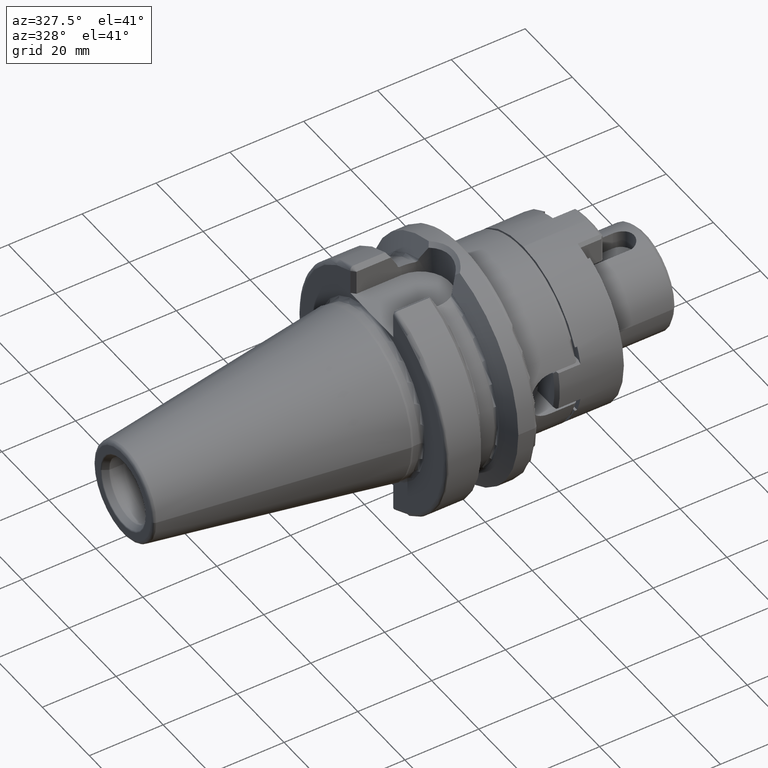
[diagram: clean part render]
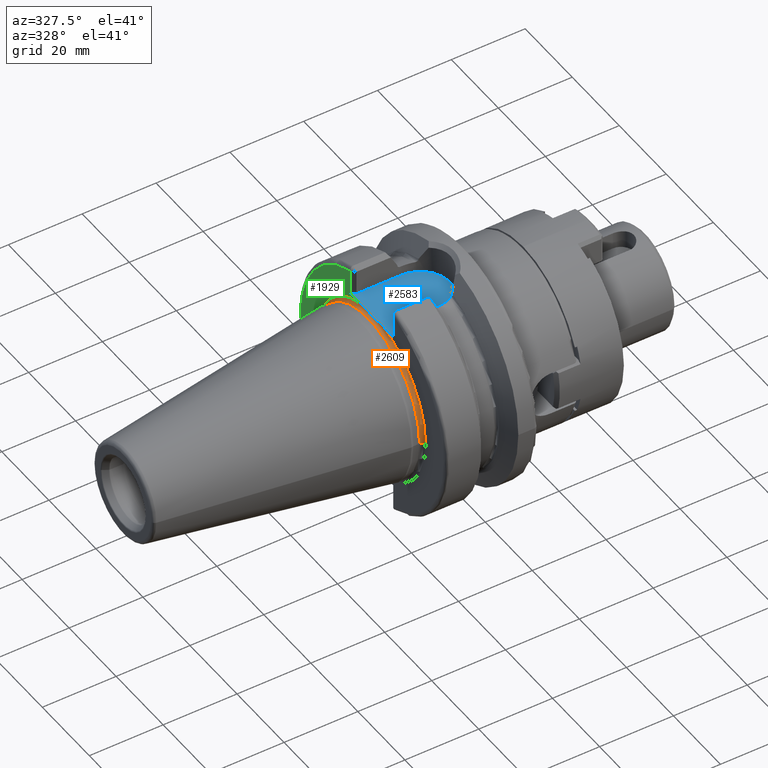
[diagram: same view with three faces highlighted in distinct colors, each labeled with its STEP entity id]
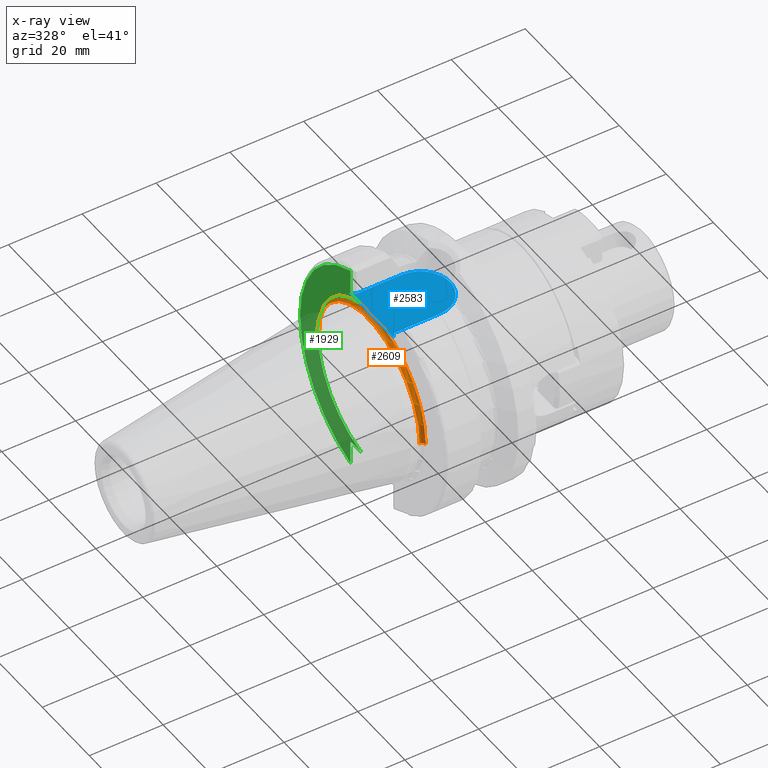
[diagram: x-ray of the same camera — body ghosted, the three highlighted faces saturated]
A machine part, auxiliary view with three faces highlighted in distinct colors.
The next image is the same camera in x-ray (body ghosted, the three faces saturated) — at least one of them is partly hidden behind the body in this view.
Their STEP definitions:

[orange] entity #2609 — the highlighted toroidal blend (fillet) surface has major radius 22.875 mm and minor (blend) radius 1 mm.
#78=CARTESIAN_POINT('',(1.E0,0.E0,0.E0));
#79=DIRECTION('',(1.E0,0.E0,0.E0));
#80=DIRECTION('',(0.E0,1.E0,0.E0));
#81=AXIS2_PLACEMENT_3D('',#78,#79,#80);
#101=CARTESIAN_POINT('',(1.E0,2.2875E1,0.E0));
#102=DIRECTION('',(0.E0,0.E0,-1.E0));
#103=DIRECTION('',(1.E0,0.E0,0.E0));
#104=AXIS2_PLACEMENT_3D('',#101,#102,#103);
#106=CARTESIAN_POINT('',(1.E0,-2.2875E1,0.E0));
#107=DIRECTION('',(0.E0,0.E0,1.E0));
#108=DIRECTION('',(1.E0,0.E0,0.E0));
#109=AXIS2_PLACEMENT_3D('',#106,#107,#108);
#709=CARTESIAN_POINT('',(2.E0,0.E0,0.E0));
#710=DIRECTION('',(1.E0,0.E0,0.E0));
#711=DIRECTION('',(0.E0,1.E0,0.E0));
#712=AXIS2_PLACEMENT_3D('',#709,#710,#711);
#714=CARTESIAN_POINT('',(2.E0,-4.388977671395E0,2.245E1));
#715=CARTESIAN_POINT('',(2.E0,-3.970864393558E0,2.245E1));
#716=CARTESIAN_POINT('',(1.981114905487E0,-3.134790252725E0,2.245E1));
#717=CARTESIAN_POINT('',(1.935909306649E0,-1.881114481277E0,2.245E1));
#718=CARTESIAN_POINT('',(1.903922826077E0,-6.271978192649E-1,2.245E1));
#719=CARTESIAN_POINT('',(1.903921553166E0,6.271174205746E-1,2.245E1));
#720=CARTESIAN_POINT('',(1.935907277499E0,1.881058976319E0,2.245E1));
#721=CARTESIAN_POINT('',(1.981114329557E0,3.134769380755E0,2.245E1));
#722=CARTESIAN_POINT('',(2.E0,3.970858027314E0,2.245E1));
#723=CARTESIAN_POINT('',(2.E0,4.388977671395E0,2.245E1));
#725=CARTESIAN_POINT('',(2.E0,0.E0,0.E0));
#726=DIRECTION('',(1.E0,0.E0,0.E0));
#727=DIRECTION('',(0.E0,-1.918678763451E-1,9.814207650273E-1));
#728=AXIS2_PLACEMENT_3D('',#725,#726,#727);
#1526=CARTESIAN_POINT('',(2.E0,2.2875E1,0.E0));
#1527=CARTESIAN_POINT('',(1.E0,2.1875E1,0.E0));
#1528=VERTEX_POINT('',#1526);
#1529=VERTEX_POINT('',#1527);
#1532=CARTESIAN_POINT('',(2.E0,-2.2875E1,0.E0));
#1533=CARTESIAN_POINT('',(1.E0,-2.1875E1,0.E0));
#1534=VERTEX_POINT('',#1532);
#1535=VERTEX_POINT('',#1533);
#1596=CARTESIAN_POINT('',(2.E0,4.388977671395E0,2.245E1));
#1597=VERTEX_POINT('',#1596);
#1598=CARTESIAN_POINT('',(2.E0,-4.388977671395E0,2.245E1));
#1599=VERTEX_POINT('',#1598);
#2596=CARTESIAN_POINT('',(1.E0,0.E0,0.E0));
#2597=DIRECTION('',(1.E0,0.E0,0.E0));
#2598=DIRECTION('',(0.E0,-1.E0,0.E0));
#2599=AXIS2_PLACEMENT_3D('',#2596,#2597,#2598);
#2600=TOROIDAL_SURFACE('',#2599,2.2875E1,1.E0);
#2601=ORIENTED_EDGE('',*,*,#1922,.T.);
#2602=ORIENTED_EDGE('',*,*,#2574,.F.);
#2603=ORIENTED_EDGE('',*,*,#1940,.T.);
#2604=ORIENTED_EDGE('',*,*,#1900,.T.);
#2605=ORIENTED_EDGE('',*,*,#1869,.F.);
#2606=ORIENTED_EDGE('',*,*,#1897,.F.);
#2607=EDGE_LOOP('',(#2601,#2602,#2603,#2604,#2605,#2606));
#2608=FACE_OUTER_BOUND('',#2607,.F.);
#2609=ADVANCED_FACE('',(#2608),#2600,.F.);
#82=CIRCLE('',#81,2.1875E1);
#105=CIRCLE('',#104,1.E0);
#110=CIRCLE('',#109,1.E0);
#713=CIRCLE('',#712,2.2875E1);
#724=B_SPLINE_CURVE_WITH_KNOTS('',3,(#714,#715,#716,#717,#718,#719,#720,#721,
#722,#723),.UNSPECIFIED.,.F.,.F.,(4,1,1,1,1,1,1,4),(0.E0,1.428571428571E-1,
2.857142857143E-1,4.285714285714E-1,5.714285714286E-1,7.142857142857E-1,
8.571428571429E-1,1.E0),.UNSPECIFIED.);
#729=CIRCLE('',#728,2.2875E1);
#1869=EDGE_CURVE('',#1529,#1535,#82,.T.);
#1897=EDGE_CURVE('',#1528,#1529,#105,.T.);
#1900=EDGE_CURVE('',#1534,#1535,#110,.T.);
#1922=EDGE_CURVE('',#1528,#1597,#713,.T.);
#1940=EDGE_CURVE('',#1599,#1534,#729,.T.);
#2574=EDGE_CURVE('',#1599,#1597,#724,.T.);

[blue] entity #2583 — the highlighted planar face has unit normal (0, 0, 1).
#680=DIRECTION('',(1.E0,0.E0,0.E0));
#681=VECTOR('',#680,1.2155E1);
#682=CARTESIAN_POINT('',(3.E0,-8.095E0,2.245E1));
#683=LINE('',#682,#681);
#684=DIRECTION('',(0.E0,1.E0,0.E0));
#685=VECTOR('',#684,4.706022328605E0);
#686=CARTESIAN_POINT('',(2.E0,-9.095E0,2.245E1));
#687=LINE('',#686,#685);
#688=DIRECTION('',(0.E0,1.E0,0.E0));
#689=VECTOR('',#688,4.706022328605E0);
#690=CARTESIAN_POINT('',(2.E0,4.388977671395E0,2.245E1));
#691=LINE('',#690,#689);
#692=DIRECTION('',(-1.E0,0.E0,0.E0));
#693=VECTOR('',#692,1.2155E1);
#694=CARTESIAN_POINT('',(1.5155E1,8.095E0,2.245E1));
#695=LINE('',#694,#693);
#696=CARTESIAN_POINT('',(1.5155E1,0.E0,2.245E1));
#697=DIRECTION('',(0.E0,0.E0,1.E0));
#698=DIRECTION('',(0.E0,-1.E0,0.E0));
#699=AXIS2_PLACEMENT_3D('',#696,#697,#698);
#705=DIRECTION('',(7.071067811865E-1,7.071067811865E-1,0.E0));
#706=VECTOR('',#705,1.414213562373E0);
#707=CARTESIAN_POINT('',(2.E0,-9.095E0,2.245E1));
#708=LINE('',#707,#706);
#714=CARTESIAN_POINT('',(2.E0,-4.388977671395E0,2.245E1));
#715=CARTESIAN_POINT('',(2.E0,-3.970864393558E0,2.245E1));
#716=CARTESIAN_POINT('',(1.981114905487E0,-3.134790252725E0,2.245E1));
#717=CARTESIAN_POINT('',(1.935909306649E0,-1.881114481277E0,2.245E1));
#718=CARTESIAN_POINT('',(1.903922826077E0,-6.271978192649E-1,2.245E1));
#719=CARTESIAN_POINT('',(1.903921553166E0,6.271174205746E-1,2.245E1));
#720=CARTESIAN_POINT('',(1.935907277499E0,1.881058976319E0,2.245E1));
#721=CARTESIAN_POINT('',(1.981114329557E0,3.134769380755E0,2.245E1));
#722=CARTESIAN_POINT('',(2.E0,3.970858027314E0,2.245E1));
#723=CARTESIAN_POINT('',(2.E0,4.388977671395E0,2.245E1));
#730=DIRECTION('',(-7.071067811865E-1,7.071067811865E-1,0.E0));
#731=VECTOR('',#730,1.414213562373E0);
#732=CARTESIAN_POINT('',(3.E0,8.095E0,2.245E1));
#733=LINE('',#732,#731);
#1592=CARTESIAN_POINT('',(1.5155E1,-8.095E0,2.245E1));
#1593=CARTESIAN_POINT('',(1.5155E1,8.095E0,2.245E1));
#1594=VERTEX_POINT('',#1592);
#1595=VERTEX_POINT('',#1593);
#1596=CARTESIAN_POINT('',(2.E0,4.388977671395E0,2.245E1));
#1597=VERTEX_POINT('',#1596);
#1598=CARTESIAN_POINT('',(2.E0,-4.388977671395E0,2.245E1));
#1599=VERTEX_POINT('',#1598);
#1633=CARTESIAN_POINT('',(3.E0,-8.095E0,2.245E1));
#1635=VERTEX_POINT('',#1633);
#1637=CARTESIAN_POINT('',(2.E0,-9.095E0,2.245E1));
#1639=VERTEX_POINT('',#1637);
#1646=CARTESIAN_POINT('',(2.E0,9.095E0,2.245E1));
#1647=VERTEX_POINT('',#1646);
#1648=CARTESIAN_POINT('',(3.E0,8.095E0,2.245E1));
#1650=VERTEX_POINT('',#1648);
#2565=CARTESIAN_POINT('',(0.E0,0.E0,2.245E1));
#2566=DIRECTION('',(0.E0,0.E0,1.E0));
#2567=DIRECTION('',(1.E0,0.E0,0.E0));
#2568=AXIS2_PLACEMENT_3D('',#2565,#2566,#2567);
#2569=PLANE('',#2568);
#2570=ORIENTED_EDGE('',*,*,#2331,.F.);
#2572=ORIENTED_EDGE('',*,*,#2571,.F.);
#2573=ORIENTED_EDGE('',*,*,#1942,.T.);
#2575=ORIENTED_EDGE('',*,*,#2574,.T.);
#2576=ORIENTED_EDGE('',*,*,#1920,.T.);
#2578=ORIENTED_EDGE('',*,*,#2577,.F.);
#2579=ORIENTED_EDGE('',*,*,#2556,.F.);
#2580=ORIENTED_EDGE('',*,*,#2302,.F.);
#2581=EDGE_LOOP('',(#2570,#2572,#2573,#2575,#2576,#2578,#2579,#2580));
#2582=FACE_OUTER_BOUND('',#2581,.F.);
#2583=ADVANCED_FACE('',(#2582),#2569,.T.);
#700=CIRCLE('',#699,8.095E0);
#724=B_SPLINE_CURVE_WITH_KNOTS('',3,(#714,#715,#716,#717,#718,#719,#720,#721,
#722,#723),.UNSPECIFIED.,.F.,.F.,(4,1,1,1,1,1,1,4),(0.E0,1.428571428571E-1,
2.857142857143E-1,4.285714285714E-1,5.714285714286E-1,7.142857142857E-1,
8.571428571429E-1,1.E0),.UNSPECIFIED.);
#1920=EDGE_CURVE('',#1597,#1647,#691,.T.);
#1942=EDGE_CURVE('',#1639,#1599,#687,.T.);
#2302=EDGE_CURVE('',#1594,#1595,#700,.T.);
#2331=EDGE_CURVE('',#1635,#1594,#683,.T.);
#2556=EDGE_CURVE('',#1595,#1650,#695,.T.);
#2571=EDGE_CURVE('',#1639,#1635,#708,.T.);
#2574=EDGE_CURVE('',#1599,#1597,#724,.T.);
#2577=EDGE_CURVE('',#1650,#1647,#733,.T.);

[green] entity #1929 — the highlighted planar face has unit normal (1, 0, 0).
#96=CARTESIAN_POINT('',(2.E0,0.E0,0.E0));
#97=DIRECTION('',(-1.E0,0.E0,0.E0));
#98=DIRECTION('',(0.E0,1.E0,0.E0));
#99=AXIS2_PLACEMENT_3D('',#96,#97,#98);
#127=DIRECTION('',(2.137863157138E-6,2.138092596513E-6,9.999999999954E-1));
#128=VECTOR('',#127,6.649288203884E0);
#129=CARTESIAN_POINT('',(1.999985784732E0,9.094985783206E0,-2.909928820385E1));
#130=LINE('',#129,#128);
#131=DIRECTION('',(-4.462834027332E-6,-4.463945839096E-6,9.999999999801E-1));
#132=VECTOR('',#131,6.649296399125E0);
#133=CARTESIAN_POINT('',(2.E0,9.095E0,2.245E1));
#134=LINE('',#133,#132);
#592=CARTESIAN_POINT('',(2.E0,0.E0,0.E0));
#593=DIRECTION('',(-1.E0,0.E0,0.E0));
#594=DIRECTION('',(0.E0,2.983190614061E-1,9.544662055839E-1));
#595=AXIS2_PLACEMENT_3D('',#592,#593,#594);
#688=DIRECTION('',(0.E0,1.E0,0.E0));
#689=VECTOR('',#688,4.706022328605E0);
#690=CARTESIAN_POINT('',(2.E0,4.388977671395E0,2.245E1));
#691=LINE('',#690,#689);
#709=CARTESIAN_POINT('',(2.E0,0.E0,0.E0));
#710=DIRECTION('',(1.E0,0.E0,0.E0));
#711=DIRECTION('',(0.E0,1.E0,0.E0));
#712=AXIS2_PLACEMENT_3D('',#709,#710,#711);
#746=DIRECTION('',(0.E0,-1.E0,0.E0));
#747=VECTOR('',#746,4.706022328605E0);
#748=CARTESIAN_POINT('',(2.E0,9.095E0,-2.245E1));
#749=LINE('',#748,#747);
#1526=CARTESIAN_POINT('',(2.E0,2.2875E1,0.E0));
#1528=VERTEX_POINT('',#1526);
#1596=CARTESIAN_POINT('',(2.E0,4.388977671395E0,2.245E1));
#1597=VERTEX_POINT('',#1596);
#1604=CARTESIAN_POINT('',(2.E0,4.388977671395E0,-2.245E1));
#1605=VERTEX_POINT('',#1604);
#1642=CARTESIAN_POINT('',(2.E0,9.095027762300E0,2.909928051090E1));
#1644=VERTEX_POINT('',#1642);
#1646=CARTESIAN_POINT('',(2.E0,9.095E0,2.245E1));
#1647=VERTEX_POINT('',#1646);
#1656=CARTESIAN_POINT('',(1.999985784732E0,9.094985783206E0,-2.909928820385E1));
#1657=CARTESIAN_POINT('',(2.E0,9.095E0,-2.245E1));
#1658=VERTEX_POINT('',#1656);
#1659=VERTEX_POINT('',#1657);
#1909=CARTESIAN_POINT('',(2.E0,0.E0,0.E0));
#1910=DIRECTION('',(1.E0,0.E0,0.E0));
#1911=DIRECTION('',(0.E0,-1.E0,0.E0));
#1912=AXIS2_PLACEMENT_3D('',#1909,#1910,#1911);
#1913=PLANE('',#1912);
#1915=ORIENTED_EDGE('',*,*,#1914,.F.);
#1917=ORIENTED_EDGE('',*,*,#1916,.F.);
#1919=ORIENTED_EDGE('',*,*,#1918,.F.);
#1921=ORIENTED_EDGE('',*,*,#1920,.F.);
#1923=ORIENTED_EDGE('',*,*,#1922,.F.);
#1924=ORIENTED_EDGE('',*,*,#1895,.T.);
#1926=ORIENTED_EDGE('',*,*,#1925,.F.);
#1927=EDGE_LOOP('',(#1915,#1917,#1919,#1921,#1923,#1924,#1926));
#1928=FACE_OUTER_BOUND('',#1927,.F.);
#1929=ADVANCED_FACE('',(#1928),#1913,.F.);
#100=CIRCLE('',#99,2.2875E1);
#596=CIRCLE('',#595,3.04875E1);
#713=CIRCLE('',#712,2.2875E1);
#1895=EDGE_CURVE('',#1528,#1605,#100,.T.);
#1914=EDGE_CURVE('',#1658,#1659,#130,.T.);
#1916=EDGE_CURVE('',#1644,#1658,#596,.T.);
#1918=EDGE_CURVE('',#1647,#1644,#134,.T.);
#1920=EDGE_CURVE('',#1597,#1647,#691,.T.);
#1922=EDGE_CURVE('',#1528,#1597,#713,.T.);
#1925=EDGE_CURVE('',#1659,#1605,#749,.T.);